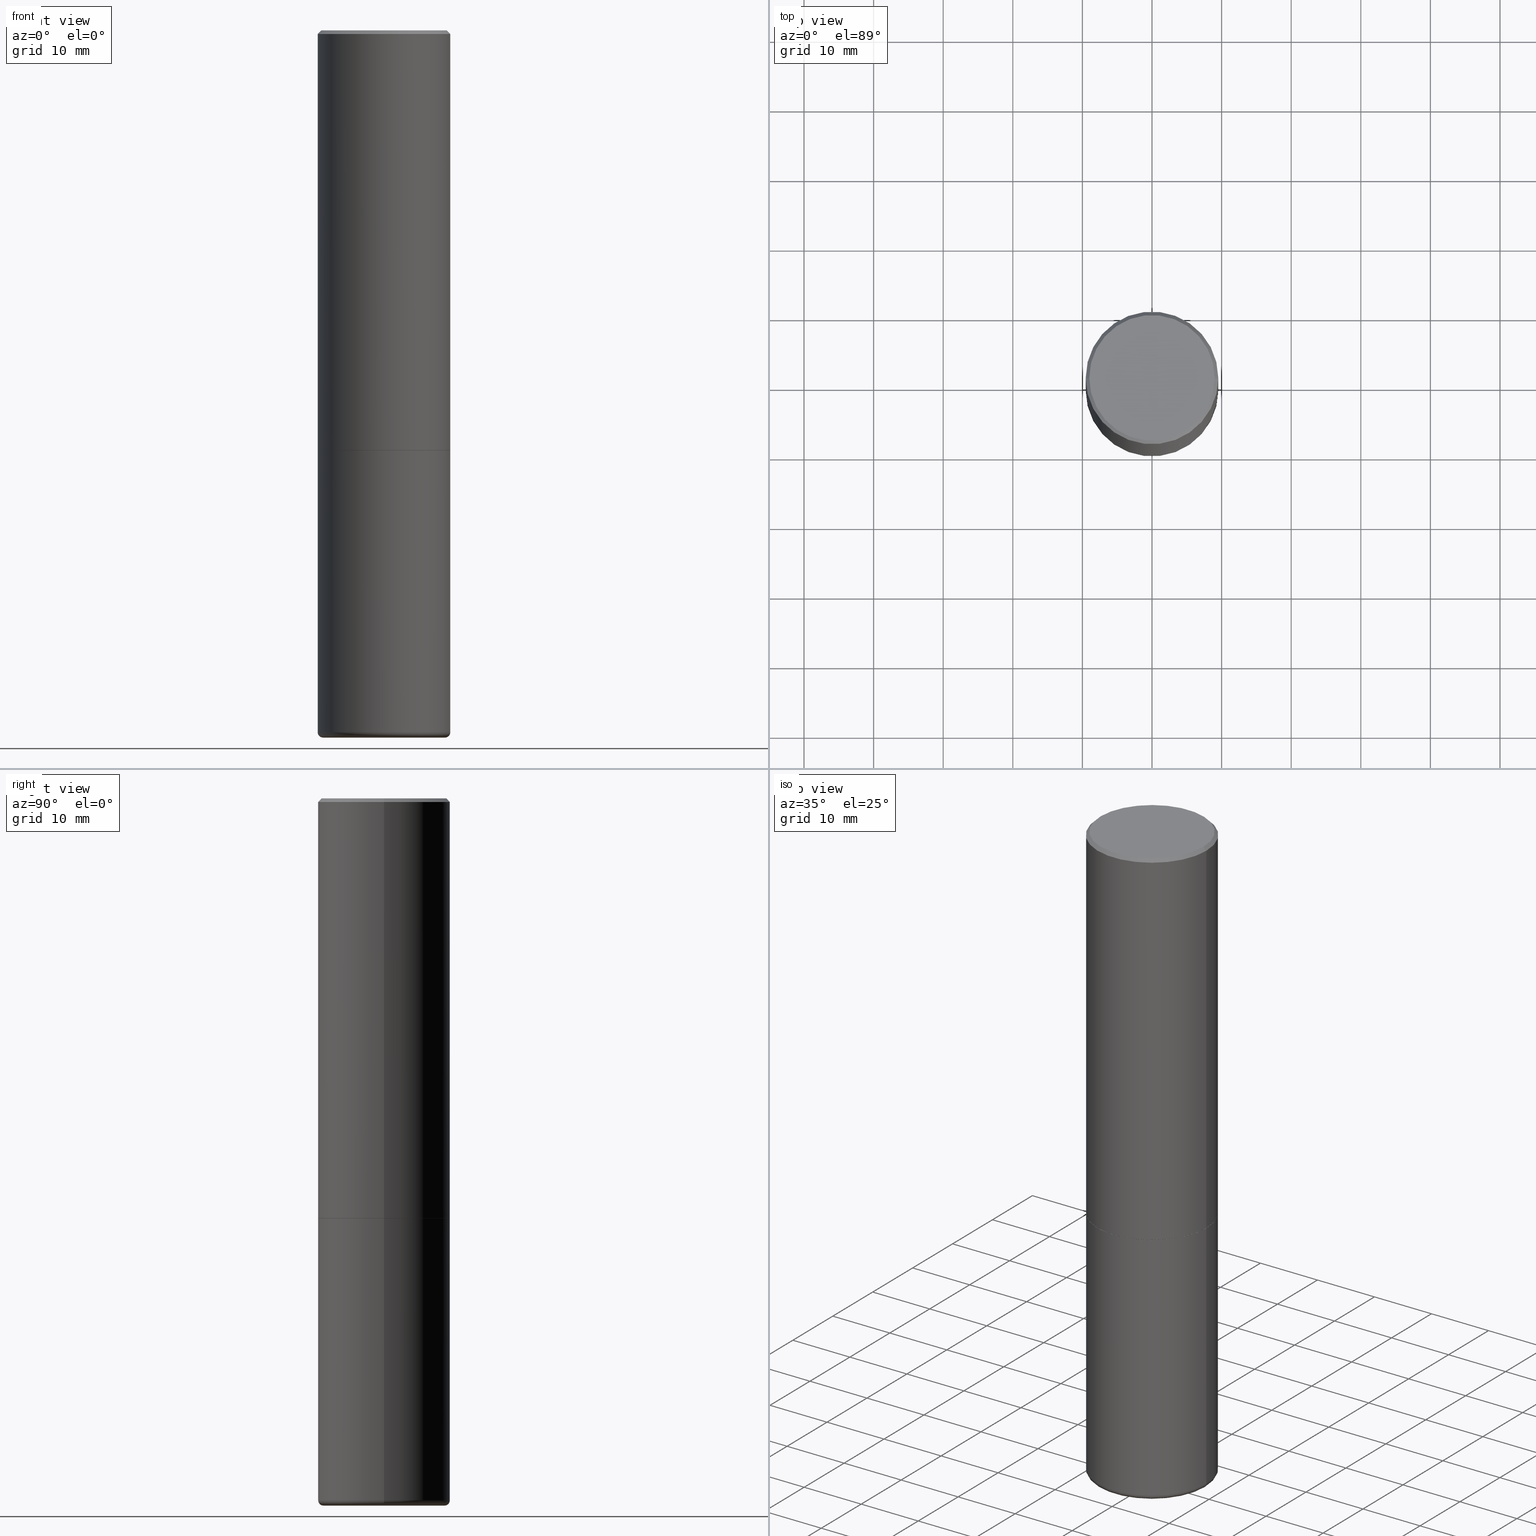
[diagram: canonical four-view strip — front | top / right | iso, engineering-drawing reading convention]
A machine part, canonical four-view strip (front | top / right | iso — engineering-drawing reading convention). The complete STEP part file that produces these views, byte-faithful:
ISO-10303-21;
HEADER;
FILE_DESCRIPTION (( 'STEP AP203' ),
    '1' );
FILE_NAME ('35121.STEP',
    '2022-07-29T12:17:43',
    ( '' ),
    ( '' ),
    'SwSTEP 2.0',
    'SolidWorks 2022',
    '' );
FILE_SCHEMA (( 'CONFIG_CONTROL_DESIGN' ));
ENDSEC;

DATA;
#1 = DATE_AND_TIME ( #261, #391 ) ;
#2 = CARTESIAN_POINT ( 'NONE',  ( 5.805542945883513814E-29, -8.288776698413627111E-15, -2.373999999999999666 ) ) ;
#3 = DIRECTION ( 'NONE',  ( 1.000000000000000000, -6.982962677686265133E-15, 4.883557194083112340E-29 ) ) ;
#4 = PERSON_AND_ORGANIZATION ( #148, #7 ) ;
#5 = EDGE_CURVE ( 'NONE', #259, #17, #77, .T. ) ;
#6 = FACE_OUTER_BOUND ( 'NONE', #88, .T. ) ;
#7 = ORGANIZATION ( 'UNSPECIFIED', 'UNSPECIFIED', '' ) ;
#8 = CARTESIAN_POINT ( 'NONE',  ( 5.807988414689699417E-29, -8.292268179752470118E-15, -2.375000000000000000 ) ) ;
#9 = ORIENTED_EDGE ( 'NONE', *, *, #152, .T. ) ;
#10 = VECTOR ( 'NONE', #208, 39.37007874015748143 ) ;
#11 = CARTESIAN_POINT ( 'NONE',  ( -0.3749999999999992784, 2.548781377355481985E-15, -0.02000000000000016695 ) ) ;
#12 = APPROVAL ( #454, 'UNSPECIFIED' ) ;
#13 = DIRECTION ( 'NONE',  ( 2.438088387897960049E-29, -3.491481338843145188E-15, -1.000000000000000000 ) ) ;
#14 = EDGE_CURVE ( 'NONE', #369, #490, #418, .T. ) ;
#15 = CARTESIAN_POINT ( 'NONE',  ( -0.3549999999999992051, 2.513866563967050730E-15, 4.268512490082953109E-18 ) ) ;
#16 = CONICAL_SURFACE ( 'NONE', #430, 0.3447382039350491145, 1.562069680534942995 ) ;
#17 = VERTEX_POINT ( 'NONE', #230 ) ;
#18 = CARTESIAN_POINT ( 'NONE',  ( 0.000000000000000000, 0.000000000000000000, 0.000000000000000000 ) ) ;
#19 = DIRECTION ( 'NONE',  ( -2.445468806185136597E-29, 3.491481338843145583E-15, 1.000000000000000000 ) ) ;
#20 = ORIENTED_EDGE ( 'NONE', *, *, #14, .F. ) ;
#21 = DIRECTION ( 'NONE',  ( 1.000000000000000000, -6.982962677686266711E-15, 4.876176775795936353E-29 ) ) ;
#22 = CARTESIAN_POINT ( 'NONE',  ( 0.3447382039350491145, -1.637321936702362776E-14, -3.999999999999999556 ) ) ;
#23 = ORIENTED_EDGE ( 'NONE', *, *, #82, .T. ) ;
#24 = AXIS2_PLACEMENT_3D ( 'NONE', #159, #347, #198 ) ;
#25 = DIRECTION ( 'NONE',  ( -2.445468806185136597E-29, 3.491481338843145583E-15, 1.000000000000000000 ) ) ;
#26 = ORIENTED_EDGE ( 'NONE', *, *, #282, .T. ) ;
#27 = DATE_TIME_ROLE ( 'creation_date' ) ;
#28 = EDGE_LOOP ( 'NONE', ( #451, #330, #387, #238 ) ) ;
#29 = APPROVAL_PERSON_ORGANIZATION ( #299, #12, #305 ) ;
#30 = CALENDAR_DATE ( 2022, 29, 7 ) ;
#31 = CARTESIAN_POINT ( 'NONE',  ( 0.3207382039350491487, -1.616561788857291016E-14, -3.999790555173021733 ) ) ;
#32 = EDGE_CURVE ( 'NONE', #478, #295, #380, .T. ) ;
#33 = APPROVAL ( #466, 'UNSPECIFIED' ) ;
#34 = CARTESIAN_POINT ( 'NONE',  ( 0.3749999999999993894, -2.618611004132345678E-15, 1.828566290923473120E-29 ) ) ;
#35 = PLANE ( 'NONE',  #268 ) ;
#36 = DIRECTION ( 'NONE',  ( -2.445468806185136597E-29, 3.491481338843145583E-15, 1.000000000000000000 ) ) ;
#37 = CC_DESIGN_APPROVAL ( #12, ( #476 ) ) ;
#38 = CC_DESIGN_PERSON_AND_ORGANIZATION_ASSIGNMENT ( #67, #297, ( #98 ) ) ;
#39 = PERSON_AND_ORGANIZATION ( #148, #7 ) ;
#40 = APPROVAL_DATE_TIME ( #279, #383 ) ;
#41 = CIRCLE ( 'NONE', #472, 0.02999999999999940561 ) ;
#42 = CARTESIAN_POINT ( 'NONE',  ( -0.3749999999999992784, -8.412191282553172474E-15, -3.970001142308074993 ) ) ;
#43 = APPROVAL_ROLE ( '' ) ;
#44 = ORIENTED_EDGE ( 'NONE', *, *, #180, .T. ) ;
#45 = DIRECTION ( 'NONE',  ( 2.438088387897960049E-29, -3.491481338843145188E-15, -1.000000000000000000 ) ) ;
#46 = ADVANCED_FACE ( 'NONE', ( #339 ), #201, .F. ) ;
#47 = CC_DESIGN_PERSON_AND_ORGANIZATION_ASSIGNMENT ( #146, #225, ( #476 ) ) ;
#48 = VERTEX_POINT ( 'NONE', #262 ) ;
#49 = AXIS2_PLACEMENT_3D ( 'NONE', #51, #355, #120 ) ;
#50 = VECTOR ( 'NONE', #106, 39.37007874015748854 ) ;
#51 = CARTESIAN_POINT ( 'NONE',  ( 5.805542945883513814E-29, -8.288776698413627111E-15, -2.373999999999999666 ) ) ;
#52 = EDGE_CURVE ( 'NONE', #478, #223, #317, .T. ) ;
#53 = DIRECTION ( 'NONE',  ( 1.000000000000000000, -6.982962677686264344E-15, 0.000000000000000000 ) ) ;
#54 = ADVANCED_FACE ( 'NONE', ( #228 ), #131, .T. ) ;
#55 = APPROVAL_PERSON_ORGANIZATION ( #4, #33, #274 ) ;
#56 = CARTESIAN_POINT ( 'NONE',  ( -0.3749999999999993894, 2.664535259100371358E-15, -1.844600658845586515E-29 ) ) ;
#57 = EDGE_LOOP ( 'NONE', ( #99, #375 ) ) ;
#58 = CARTESIAN_POINT ( 'NONE',  ( 0.3739999999999996105, -1.090389622120713096E-14, -2.375000000000000000 ) ) ;
#59 = CARTESIAN_POINT ( 'NONE',  ( 0.000000000000000000, 0.000000000000000000, 0.000000000000000000 ) ) ;
#60 = ORIENTED_EDGE ( 'NONE', *, *, #180, .F. ) ;
#61 = FACE_OUTER_BOUND ( 'NONE', #253, .T. ) ;
#62 = CARTESIAN_POINT ( 'NONE',  ( 0.3207382039350491487, -1.616561788857291016E-14, -3.999790555173021733 ) ) ;
#63 = CARTESIAN_POINT ( 'NONE',  ( 9.708513954033757613E-29, -1.386118490355461518E-14, -3.970001142308074993 ) ) ;
#64 = ORIENTED_EDGE ( 'NONE', *, *, #275, .F. ) ;
#65 = CARTESIAN_POINT ( 'NONE',  ( 0.000000000000000000, 0.000000000000000000, 0.000000000000000000 ) ) ;
#66 = EDGE_LOOP ( 'NONE', ( #392, #410 ) ) ;
#67 = PERSON_AND_ORGANIZATION ( #148, #7 ) ;
#68 = EDGE_LOOP ( 'NONE', ( #457, #434, #128, #281 ) ) ;
#69 = DIRECTION ( 'NONE',  ( 1.000000000000000000, -6.982962677686267499E-15, 0.000000000000000000 ) ) ;
#70 = CARTESIAN_POINT ( 'NONE',  ( 9.708513954033757613E-29, -1.386118490355461518E-14, -3.970001142308074993 ) ) ;
#71 = EDGE_CURVE ( 'NONE', #223, #478, #481, .T. ) ;
#72 = AXIS2_PLACEMENT_3D ( 'NONE', #423, #36, #3 ) ;
#73 = FACE_OUTER_BOUND ( 'NONE', #403, .T. ) ;
#74 = CARTESIAN_POINT ( 'NONE',  ( 0.3447382039350491145, -1.633100111322433910E-14, -3.999999999999999556 ) ) ;
#75 = EDGE_CURVE ( 'NONE', #449, #369, #459, .T. ) ;
#76 = CC_DESIGN_PERSON_AND_ORGANIZATION_ASSIGNMENT ( #39, #432, ( #184 ) ) ;
#77 = CIRCLE ( 'NONE', #342, 0.3749999999999996114 ) ;
#78 = CONICAL_SURFACE ( 'NONE', #150, 0.3749999999999992784, 0.7853981633974456145 ) ;
#79 = LINE ( 'NONE', #433, #165 ) ;
#80 = DIRECTION ( 'NONE',  ( -2.445468806185136877E-29, 3.491481338843145188E-15, 1.000000000000000000 ) ) ;
#81 = DATE_TIME_ROLE ( 'classification_date' ) ;
#82 = EDGE_CURVE ( 'NONE', #166, #440, #443, .T. ) ;
#83 = CARTESIAN_POINT ( 'NONE',  ( -0.3749999999999992784, 2.548781377355481985E-15, -0.02000000000000016695 ) ) ;
#84 = DIRECTION ( 'NONE',  ( 1.000000000000000000, -6.982962677686267499E-15, 0.000000000000000000 ) ) ;
#85 = CIRCLE ( 'NONE', #24, 0.3207382039350491487 ) ;
#86 = DIRECTION ( 'NONE',  ( 1.000000000000000000, -6.982962677686267499E-15, 0.000000000000000000 ) ) ;
#87 = ADVANCED_FACE ( 'NONE', ( #168 ), #35, .F. ) ;
#88 = EDGE_LOOP ( 'NONE', ( #161, #26, #60, #116 ) ) ;
#89 = DIRECTION ( 'NONE',  ( 1.000000000000000000, -6.982962677686266711E-15, 4.876231632511998833E-29 ) ) ;
#90 = EDGE_LOOP ( 'NONE', ( #325, #358, #44, #249 ) ) ;
#91 = CARTESIAN_POINT ( 'NONE',  ( 4.890937612370313446E-31, -6.982962677686349541E-17, -0.02000000000000016695 ) ) ;
#92 = ORIENTED_EDGE ( 'NONE', *, *, #5, .F. ) ;
#93 = CARTESIAN_POINT ( 'NONE',  ( -0.3749999999999995559, -1.514767903494871085E-15, -2.373999999999999666 ) ) ;
#94 = CARTESIAN_POINT ( 'NONE',  ( -0.3207382039350491487, -1.172549117528109573E-14, -3.999790555173021733 ) ) ;
#95 = CARTESIAN_POINT ( 'NONE',  ( 0.3749999999999992784, -1.647979590768695889E-14, -3.970001142308074993 ) ) ;
#96 = ORIENTED_EDGE ( 'NONE', *, *, #82, .F. ) ;
#97 = LINE ( 'NONE', #209, #447 ) ;
#98 = PRODUCT ( '35121', '35121', '', ( #485 ) ) ;
#99 = ORIENTED_EDGE ( 'NONE', *, *, #265, .T. ) ;
#100 = DIRECTION ( 'NONE',  ( -0.7071067811865232589, 7.493145998870265808E-15, 0.7071067811865715536 ) ) ;
#101 = COORDINATED_UNIVERSAL_TIME_OFFSET ( 5, 0, .BEHIND. ) ;
#102 = ORIENTED_EDGE ( 'NONE', *, *, #492, .F. ) ;
#103 = TOROIDAL_SURFACE ( 'NONE', #72, 0.3450000000000001954, 0.02999999999999943337 ) ;
#104 = EDGE_CURVE ( 'NONE', #153, #440, #79, .T. ) ;
#105 = CARTESIAN_POINT ( 'NONE',  ( 9.781875224740545266E-29, -1.396592535537258075E-14, -3.999999999999999556 ) ) ;
#106 = DIRECTION ( 'NONE',  ( 0.9999619230641714207, -6.890705306874780363E-15, -0.008726535498355912635 ) ) ;
#107 = DIRECTION ( 'NONE',  ( 1.000000000000000000, -6.982962677686267499E-15, 0.000000000000000000 ) ) ;
#108 = CIRCLE ( 'NONE', #303, 0.3549999999999992051 ) ;
#109 = AXIS2_PLACEMENT_3D ( 'NONE', #70, #145, #186 ) ;
#110 = CALENDAR_DATE ( 2022, 29, 7 ) ;
#111 = ORIENTED_EDGE ( 'NONE', *, *, #75, .F. ) ;
#112 = DIRECTION ( 'NONE',  ( 2.445468806185136597E-29, -3.491481338843145583E-15, -1.000000000000000000 ) ) ;
#113 = ADVANCED_FACE ( 'NONE', ( #467 ), #321, .F. ) ;
#114 = CC_DESIGN_PERSON_AND_ORGANIZATION_ASSIGNMENT ( #381, #191, ( #276 ) ) ;
#115 = CYLINDRICAL_SURFACE ( 'NONE', #422, 0.3749999999999993894 ) ;
#116 = ORIENTED_EDGE ( 'NONE', *, *, #304, .F. ) ;
#117 = DIRECTION ( 'NONE',  ( 1.000000000000000000, -6.982962677686266711E-15, 4.876176775795936353E-29 ) ) ;
#118 = LOCAL_TIME ( 8, 17, 43.00000000000000000, #346 ) ;
#119 = ADVANCED_FACE ( 'NONE', ( #203 ), #16, .F. ) ;
#120 = DIRECTION ( 'NONE',  ( 1.000000000000000000, -6.982962677686264344E-15, 0.000000000000000000 ) ) ;
#121 = CIRCLE ( 'NONE', #394, 0.3749999999999996114 ) ;
#122 = APPLICATION_CONTEXT ( 'configuration controlled 3d designs of mechanical parts and assemblies' ) ;
#123 = CARTESIAN_POINT ( 'NONE',  ( 9.781875224740545266E-29, -1.396592535537258075E-14, -3.999999999999999556 ) ) ;
#124 = DIRECTION ( 'NONE',  ( -1.000000000000000000, 6.982962677686265922E-15, -4.876176775795935793E-29 ) ) ;
#125 = ORIENTED_EDGE ( 'NONE', *, *, #152, .F. ) ;
#126 = CARTESIAN_POINT ( 'NONE',  ( -1.043851414335219820E-46, 1.490343170380447200E-32, 4.268512490100411279E-18 ) ) ;
#127 = CARTESIAN_POINT ( 'NONE',  ( 0.000000000000000000, 0.000000000000000000, 0.000000000000000000 ) ) ;
#128 = ORIENTED_EDGE ( 'NONE', *, *, #492, .T. ) ;
#129 = CONICAL_SURFACE ( 'NONE', #206, 0.3739999999999996105, 0.7853981633974141952 ) ;
#130 = DIRECTION ( 'NONE',  ( -2.438088387897960049E-29, 3.491481338843145188E-15, 1.000000000000000000 ) ) ;
#131 = CONICAL_SURFACE ( 'NONE', #465, 0.3749999999999992784, 0.7853981633974456145 ) ;
#132 = FACE_OUTER_BOUND ( 'NONE', #68, .T. ) ;
#133 = EDGE_CURVE ( 'NONE', #295, #48, #200, .T. ) ;
#134 = EDGE_LOOP ( 'NONE', ( #302, #400, #414 ) ) ;
#135 = CIRCLE ( 'NONE', #242, 0.3739999999999996105 ) ;
#136 = ORIENTED_EDGE ( 'NONE', *, *, #388, .F. ) ;
#137 = DIRECTION ( 'NONE',  ( 0.000000000000000000, 0.000000000000000000, 1.000000000000000000 ) ) ;
#138 = ORIENTED_EDGE ( 'NONE', *, *, #388, .T. ) ;
#139 = CONICAL_SURFACE ( 'NONE', #199, 0.3207382039350491487, 1.535889741755010807 ) ;
#140 = ADVANCED_FACE ( 'NONE', ( #6 ), #115, .T. ) ;
#141 = LENGTH_MEASURE_WITH_UNIT ( LENGTH_MEASURE( 0.02539999999999999897 ), #255 );
#142 = DIRECTION ( 'NONE',  ( 1.000000000000000000, -6.982962677686264344E-15, 0.000000000000000000 ) ) ;
#143 = UNCERTAINTY_MEASURE_WITH_UNIT (LENGTH_MEASURE( 1.000000000000000082E-05 ), #222, 'distance_accuracy_value', 'NONE');
#144 = VECTOR ( 'NONE', #254, 39.37007874015748854 ) ;
#145 = DIRECTION ( 'NONE',  ( -2.445468806185136597E-29, 3.491481338843145583E-15, 1.000000000000000000 ) ) ;
#146 = PERSON_AND_ORGANIZATION ( #148, #7 ) ;
#147 = DIRECTION ( 'NONE',  ( 2.445468806185136597E-29, -3.491481338843145583E-15, -1.000000000000000000 ) ) ;
#148 = PERSON ( 'UNSPECIFIED', 'UNSPECIFIED', 'UNSPECIFIED', ('UNSPECIFIED'), ('UNSPECIFIED'), ('UNSPECIFIED') ) ;
#149 = COORDINATED_UNIVERSAL_TIME_OFFSET ( 5, 0, .BEHIND. ) ;
#150 = AXIS2_PLACEMENT_3D ( 'NONE', #91, #359, #329 ) ;
#151 = FACE_OUTER_BOUND ( 'NONE', #134, .T. ) ;
#152 = EDGE_CURVE ( 'NONE', #455, #216, #135, .T. ) ;
#153 = VERTEX_POINT ( 'NONE', #243 ) ;
#154 = AXIS2_PLACEMENT_3D ( 'NONE', #378, #460, #491 ) ;
#155 = DIRECTION ( 'NONE',  ( 0.7071067811865454633, -7.319954787623246579E-15, -0.7071067811865493491 ) ) ;
#156 = AXIS2_PLACEMENT_3D ( 'NONE', #214, #370, #170 ) ;
#157 = ORIENTED_EDGE ( 'NONE', *, *, #282, .F. ) ;
#158 = DIRECTION ( 'NONE',  ( -0.7071067811865454633, 2.468850131082235761E-15, -0.7071067811865493491 ) ) ;
#159 = CARTESIAN_POINT ( 'NONE',  ( 9.781363033949554228E-29, -1.396519408266767050E-14, -3.999790555173021733 ) ) ;
#160 = DIRECTION ( 'NONE',  ( -1.000000000000000000, 6.982962677686265922E-15, -4.876176775795935793E-29 ) ) ;
#161 = ORIENTED_EDGE ( 'NONE', *, *, #221, .T. ) ;
#162 = CIRCLE ( 'NONE', #310, 0.3447382039350491145 ) ;
#163 = LINE ( 'NONE', #475, #177 ) ;
#164 = LINE ( 'NONE', #337, #224 ) ;
#165 = VECTOR ( 'NONE', #155, 39.37007874015748854 ) ;
#166 = VERTEX_POINT ( 'NONE', #83 ) ;
#167 = DIRECTION ( 'NONE',  ( -2.445468806185136597E-29, 3.491481338843145583E-15, 1.000000000000000000 ) ) ;
#168 = FACE_OUTER_BOUND ( 'NONE', #66, .T. ) ;
#169 = EDGE_CURVE ( 'NONE', #474, #223, #41, .T. ) ;
#170 = DIRECTION ( 'NONE',  ( 1.000000000000000000, -6.982962677686267499E-15, 0.000000000000000000 ) ) ;
#171 = ORIENTED_EDGE ( 'NONE', *, *, #340, .T. ) ;
#172 = LOCAL_TIME ( 8, 17, 43.00000000000000000, #374 ) ;
#173 = PLANE ( 'NONE',  #211 ) ;
#174 = APPLICATION_PROTOCOL_DEFINITION ( 'international standard', 'config_control_design', 1994, #189 ) ;
#175 = ORIENTED_EDGE ( 'NONE', *, *, #52, .F. ) ;
#176 = MANIFOLD_SOLID_BREP ( 'Body-Move/Copy2[1]', #273 ) ;
#177 = VECTOR ( 'NONE', #401, 39.37007874015748143 ) ;
#178 = DIRECTION ( 'NONE',  ( -0.9993908270190957621, 6.856857904024558837E-15, -0.03489949670250019204 ) ) ;
#179 = EDGE_LOOP ( 'NONE', ( #111, #444, #251 ) ) ;
#180 = EDGE_CURVE ( 'NONE', #440, #166, #484, .T. ) ;
#181 = PRODUCT_DEFINITION_SHAPE ( 'NONE', 'NONE',  #476 ) ;
#182 =( NAMED_UNIT ( * ) SI_UNIT ( $, .STERADIAN. ) SOLID_ANGLE_UNIT ( ) );
#183 = ORIENTED_EDGE ( 'NONE', *, *, #326, .T. ) ;
#184 = PRODUCT_DEFINITION_FORMATION_WITH_SPECIFIED_SOURCE ( 'ANY', '', #98, .NOT_KNOWN. ) ;
#185 = DIRECTION ( 'NONE',  ( 2.445468806185136597E-29, -3.491481338843145583E-15, -1.000000000000000000 ) ) ;
#186 = DIRECTION ( 'NONE',  ( 1.000000000000000000, -6.982962677686266711E-15, 0.000000000000000000 ) ) ;
#187 = DATE_AND_TIME ( #269, #409 ) ;
#188 = CC_DESIGN_SECURITY_CLASSIFICATION ( #276, ( #184 ) ) ;
#189 = APPLICATION_CONTEXT ( 'configuration controlled 3d designs of mechanical parts and assemblies' ) ;
#190 = ADVANCED_BREP_SHAPE_REPRESENTATION ( '35121', ( #176, #351, #489 ), #357 ) ;
#191 = PERSON_AND_ORGANIZATION_ROLE ( 'classification_officer' ) ;
#192 = AXIS2_PLACEMENT_3D ( 'NONE', #59, #19, #288 ) ;
#193 = CARTESIAN_POINT ( 'NONE',  ( 0.3749999999999992784, -2.642516375941182506E-15, -0.02000000000000016695 ) ) ;
#194 = SECURITY_CLASSIFICATION_LEVEL ( 'unclassified' ) ;
#195 = ADVANCED_FACE ( 'NONE', ( #435 ), #384, .T. ) ;
#196 = DIRECTION ( 'NONE',  ( -2.445468806185136597E-29, 3.491481338843145583E-15, 1.000000000000000000 ) ) ;
#197 = DIRECTION ( 'NONE',  ( -1.000000000000000000, 6.982962677686270655E-15, 0.000000000000000000 ) ) ;
#198 = DIRECTION ( 'NONE',  ( 1.000000000000000000, -6.982962677686264344E-15, 0.000000000000000000 ) ) ;
#199 = AXIS2_PLACEMENT_3D ( 'NONE', #312, #112, #426 ) ;
#200 = CIRCLE ( 'NONE', #236, 0.3749999999999996114 ) ;
#201 = CONICAL_SURFACE ( 'NONE', #336, 0.3447382039350491145, 1.562069680534942995 ) ;
#202 = EDGE_LOOP ( 'NONE', ( #468, #408, #333, #23 ) ) ;
#203 = FACE_OUTER_BOUND ( 'NONE', #482, .T. ) ;
#204 = ORIENTED_EDGE ( 'NONE', *, *, #350, .F. ) ;
#205 = DIRECTION ( 'NONE',  ( 1.000000000000000000, -6.982962677686270655E-15, 0.000000000000000000 ) ) ;
#206 = AXIS2_PLACEMENT_3D ( 'NONE', #412, #368, #69 ) ;
#207 = ORIENTED_EDGE ( 'NONE', *, *, #32, .T. ) ;
#208 = DIRECTION ( 'NONE',  ( -2.445468806185136877E-29, 3.491481338843145188E-15, 1.000000000000000000 ) ) ;
#209 = CARTESIAN_POINT ( 'NONE',  ( -0.3207382039350491487, -1.172549117528109573E-14, -3.999790555173021733 ) ) ;
#210 = EDGE_LOOP ( 'NONE', ( #183, #322, #175, #102 ) ) ;
#211 = AXIS2_PLACEMENT_3D ( 'NONE', #445, #130, #217 ) ;
#212 = EDGE_CURVE ( 'NONE', #300, #166, #396, .T. ) ;
#213 = DIRECTION ( 'NONE',  ( -2.445468806185136597E-29, 3.491481338843145583E-15, 1.000000000000000000 ) ) ;
#214 = CARTESIAN_POINT ( 'NONE',  ( 5.807988414689699417E-29, -8.292268179752470118E-15, -2.375000000000000000 ) ) ;
#215 = PRODUCT_RELATED_PRODUCT_CATEGORY ( 'detail', '', ( #98 ) ) ;
#216 = VERTEX_POINT ( 'NONE', #320 ) ;
#217 = DIRECTION ( 'NONE',  ( 1.000000000000000000, -6.982962677686265922E-15, 4.876176775795935793E-29 ) ) ;
#218 = CYLINDRICAL_SURFACE ( 'NONE', #192, 0.3749999999999993894 ) ;
#219 = EDGE_LOOP ( 'NONE', ( #136, #486, #438, #92 ) ) ;
#220 = CARTESIAN_POINT ( 'NONE',  ( 9.781875224740545266E-29, -1.396592535537258075E-14, -3.999999999999999556 ) ) ;
#221 = EDGE_CURVE ( 'NONE', #17, #259, #328, .T. ) ;
#222 =( CONVERSION_BASED_UNIT ( 'INCH', #141 ) LENGTH_UNIT ( ) NAMED_UNIT ( #389 ) );
#223 = VERTEX_POINT ( 'NONE', #42 ) ;
#224 = VECTOR ( 'NONE', #100, 39.37007874015748854 ) ;
#225 = PERSON_AND_ORGANIZATION_ROLE ( 'creator' ) ;
#226 = EDGE_LOOP ( 'NONE', ( #335, #373, #207, #64 ) ) ;
#227 = DIRECTION ( 'NONE',  ( -2.445468806185136597E-29, 3.491481338843145583E-15, 1.000000000000000000 ) ) ;
#228 = FACE_OUTER_BOUND ( 'NONE', #90, .T. ) ;
#229 = DIRECTION ( 'NONE',  ( -6.982962677686266711E-15, -1.000000000000000000, 3.491481338843145583E-15 ) ) ;
#230 = CARTESIAN_POINT ( 'NONE',  ( 0.3749999999999996114, -1.090738770254597397E-14, -2.373999999999999666 ) ) ;
#231 = EDGE_CURVE ( 'NONE', #455, #17, #284, .T. ) ;
#232 = CIRCLE ( 'NONE', #294, 0.3447382039350491145 ) ;
#233 = PERSON_AND_ORGANIZATION ( #148, #7 ) ;
#234 = ADVANCED_FACE ( 'NONE', ( #364 ), #173, .F. ) ;
#235 = DIRECTION ( 'NONE',  ( 7.105427357601001859E-15, 1.000000000000000000, -3.491481338843145583E-15 ) ) ;
#236 = AXIS2_PLACEMENT_3D ( 'NONE', #348, #323, #53 ) ;
#237 = PERSON_AND_ORGANIZATION_ROLE ( 'design_supplier' ) ;
#238 = ORIENTED_EDGE ( 'NONE', *, *, #340, .F. ) ;
#239 = CARTESIAN_POINT ( 'NONE',  ( 9.781363033949554228E-29, -1.396519408266767050E-14, -3.999790555173021733 ) ) ;
#240 = CARTESIAN_POINT ( 'NONE',  ( -0.3450000000000001954, -1.140981246518226815E-14, -3.970001142308074993 ) ) ;
#241 = DIRECTION ( 'NONE',  ( 2.445468806185136597E-29, -3.491481338843145583E-15, -1.000000000000000000 ) ) ;
#242 = AXIS2_PLACEMENT_3D ( 'NONE', #8, #280, #86 ) ;
#243 = CARTESIAN_POINT ( 'NONE',  ( 0.3549999999999992051, -2.538996582575035526E-15, 4.268512490117958041E-18 ) ) ;
#244 = ORIENTED_EDGE ( 'NONE', *, *, #487, .T. ) ;
#245 = DIRECTION ( 'NONE',  ( -2.445468806185136597E-29, 3.491481338843145583E-15, 1.000000000000000000 ) ) ;
#246 = DIRECTION ( 'NONE',  ( -2.445468806185136597E-29, 3.491481338843145583E-15, 1.000000000000000000 ) ) ;
#247 = APPROVAL_PERSON_ORGANIZATION ( #233, #383, #43 ) ;
#248 = ADVANCED_FACE ( 'NONE', ( #61 ), #252, .T. ) ;
#249 = ORIENTED_EDGE ( 'NONE', *, *, #212, .F. ) ;
#250 = CARTESIAN_POINT ( 'NONE',  ( 5.807988414689699417E-29, -8.292268179752470118E-15, -2.375000000000000000 ) ) ;
#251 = ORIENTED_EDGE ( 'NONE', *, *, #487, .F. ) ;
#252 = CYLINDRICAL_SURFACE ( 'NONE', #285, 0.3749999999999993894 ) ;
#253 = EDGE_LOOP ( 'NONE', ( #157, #366, #256, #96 ) ) ;
#254 = DIRECTION ( 'NONE',  ( -0.9999619230641714207, 6.952228252019233144E-15, -0.008726535498355912635 ) ) ;
#255 =( LENGTH_UNIT ( ) NAMED_UNIT ( * ) SI_UNIT ( $, .METRE. ) );
#256 = ORIENTED_EDGE ( 'NONE', *, *, #304, .T. ) ;
#257 = CARTESIAN_POINT ( 'NONE',  ( 2.478951750578619081E-15, 0.3549999999999992051, -1.237341619044263666E-15 ) ) ;
#258 = CARTESIAN_POINT ( 'NONE',  ( 0.3450000000000001954, -1.627030702735637846E-14, -3.970001142308074993 ) ) ;
#259 = VERTEX_POINT ( 'NONE', #93 ) ;
#260 = VECTOR ( 'NONE', #158, 39.37007874015748854 ) ;
#261 = CALENDAR_DATE ( 2022, 29, 7 ) ;
#262 = CARTESIAN_POINT ( 'NONE',  ( -0.3749999999999995559, -8.412191282553170896E-15, -2.375000000000000000 ) ) ;
#263 = CARTESIAN_POINT ( 'NONE',  ( 9.753972744272833171E-29, -1.392608800818824940E-14, -3.988590130286208790 ) ) ;
#264 = DIRECTION ( 'NONE',  ( -2.445468806185136597E-29, 3.491481338843145583E-15, 1.000000000000000000 ) ) ;
#265 = EDGE_CURVE ( 'NONE', #300, #153, #108, .T. ) ;
#266 = AXIS2_PLACEMENT_3D ( 'NONE', #63, #227, #417 ) ;
#267 = CC_DESIGN_PERSON_AND_ORGANIZATION_ASSIGNMENT ( #345, #237, ( #184 ) ) ;
#268 = AXIS2_PLACEMENT_3D ( 'NONE', #316, #45, #160 ) ;
#269 = CALENDAR_DATE ( 2022, 29, 7 ) ;
#270 = CARTESIAN_POINT ( 'NONE',  ( 4.890937612370313446E-31, -6.982962677686349541E-17, -0.02000000000000016695 ) ) ;
#271 = DESIGN_CONTEXT ( 'detailed design', #122, 'design' ) ;
#272 = AXIS2_PLACEMENT_3D ( 'NONE', #464, #196, #84 ) ;
#273 = CLOSED_SHELL ( 'NONE', ( #46, #463, #395, #429, #113, #87, #411, #428, #119 ) ) ;
#274 = APPROVAL_ROLE ( '' ) ;
#275 = EDGE_CURVE ( 'NONE', #48, #295, #121, .T. ) ;
#276 = SECURITY_CLASSIFICATION ( '', '', #194 ) ;
#277 = EDGE_LOOP ( 'NONE', ( #338, #292, #298, #319 ) ) ;
#278 = LINE ( 'NONE', #431, #480 ) ;
#279 = DATE_AND_TIME ( #382, #398 ) ;
#280 = DIRECTION ( 'NONE',  ( -2.445468806185136597E-29, 3.491481338843145583E-15, 1.000000000000000000 ) ) ;
#281 = ORIENTED_EDGE ( 'NONE', *, *, #71, .F. ) ;
#282 = EDGE_CURVE ( 'NONE', #259, #166, #397, .T. ) ;
#283 = VECTOR ( 'NONE', #341, 39.37007874015748143 ) ;
#284 = LINE ( 'NONE', #58, #334 ) ;
#285 = AXIS2_PLACEMENT_3D ( 'NONE', #18, #245, #21 ) ;
#286 = CARTESIAN_POINT ( 'NONE',  ( 0.000000000000000000, 0.000000000000000000, 0.000000000000000000 ) ) ;
#287 = ADVANCED_FACE ( 'NONE', ( #290 ), #78, .T. ) ;
#288 = DIRECTION ( 'NONE',  ( 1.000000000000000000, -6.982962677686266711E-15, 4.876176775795936353E-29 ) ) ;
#289 = ORIENTED_EDGE ( 'NONE', *, *, #221, .F. ) ;
#290 = FACE_OUTER_BOUND ( 'NONE', #202, .T. ) ;
#291 = DIRECTION ( 'NONE',  ( -2.445468806185136597E-29, 3.491481338843145583E-15, 1.000000000000000000 ) ) ;
#292 = ORIENTED_EDGE ( 'NONE', *, *, #442, .T. ) ;
#293 = DIRECTION ( 'NONE',  ( 1.000000000000000000, -6.982962677686266711E-15, 4.876231632511998833E-29 ) ) ;
#294 = AXIS2_PLACEMENT_3D ( 'NONE', #439, #246, #399 ) ;
#295 = VERTEX_POINT ( 'NONE', #331 ) ;
#296 = DIRECTION ( 'NONE',  ( -2.445468806185136597E-29, 3.491481338843145583E-15, 1.000000000000000000 ) ) ;
#297 = PERSON_AND_ORGANIZATION_ROLE ( 'design_owner' ) ;
#298 = ORIENTED_EDGE ( 'NONE', *, *, #133, .F. ) ;
#299 = PERSON_AND_ORGANIZATION ( #148, #7 ) ;
#300 = VERTEX_POINT ( 'NONE', #15 ) ;
#301 =( NAMED_UNIT ( * ) PLANE_ANGLE_UNIT ( ) SI_UNIT ( $, .RADIAN. ) );
#302 = ORIENTED_EDGE ( 'NONE', *, *, #376, .F. ) ;
#303 = AXIS2_PLACEMENT_3D ( 'NONE', #126, #405, #89 ) ;
#304 = EDGE_CURVE ( 'NONE', #17, #440, #163, .T. ) ;
#305 = APPROVAL_ROLE ( '' ) ;
#306 = CARTESIAN_POINT ( 'NONE',  ( 4.890937612370313446E-31, -6.982962677686349541E-17, -0.02000000000000016695 ) ) ;
#307 = DIRECTION ( 'NONE',  ( -1.000000000000000000, 6.982962677686267499E-15, 0.000000000000000000 ) ) ;
#308 = SHAPE_DEFINITION_REPRESENTATION ( #181, #190 ) ;
#309 = EDGE_CURVE ( 'NONE', #153, #300, #462, .T. ) ;
#310 = AXIS2_PLACEMENT_3D ( 'NONE', #220, #296, #205 ) ;
#311 = COORDINATED_UNIVERSAL_TIME_OFFSET ( 5, 0, .BEHIND. ) ;
#312 = CARTESIAN_POINT ( 'NONE',  ( 9.781363033949554228E-29, -1.396519408266767050E-14, -3.999790555173021733 ) ) ;
#313 = CC_DESIGN_APPROVAL ( #33, ( #276 ) ) ;
#314 = APPROVAL_STATUS ( 'not_yet_approved' ) ;
#315 = AXIS2_PLACEMENT_3D ( 'NONE', #239, #327, #436 ) ;
#316 = CARTESIAN_POINT ( 'NONE',  ( 2.618611004132405237E-15, 0.3749999999999913403, -2.375000000000001332 ) ) ;
#317 = CIRCLE ( 'NONE', #109, 0.3749999999999992784 ) ;
#318 = EDGE_CURVE ( 'NONE', #352, #369, #85, .T. ) ;
#319 = ORIENTED_EDGE ( 'NONE', *, *, #32, .F. ) ;
#320 = CARTESIAN_POINT ( 'NONE',  ( -0.3739999999999996105, -5.629539893661476182E-15, -2.375000000000000000 ) ) ;
#321 = CONICAL_SURFACE ( 'NONE', #315, 0.3207382039350491487, 1.535889741755010807 ) ;
#322 = ORIENTED_EDGE ( 'NONE', *, *, #169, .T. ) ;
#323 = DIRECTION ( 'NONE',  ( -2.445468806185136597E-29, 3.491481338843145583E-15, 1.000000000000000000 ) ) ;
#324 = CIRCLE ( 'NONE', #419, 0.3207382039350491487 ) ;
#325 = ORIENTED_EDGE ( 'NONE', *, *, #309, .F. ) ;
#326 = EDGE_CURVE ( 'NONE', #490, #474, #162, .T. ) ;
#327 = DIRECTION ( 'NONE',  ( 2.445468806185136597E-29, -3.491481338843145583E-15, -1.000000000000000000 ) ) ;
#328 = CIRCLE ( 'NONE', #49, 0.3749999999999996114 ) ;
#329 = DIRECTION ( 'NONE',  ( -1.000000000000000000, 6.982962677686267499E-15, 0.000000000000000000 ) ) ;
#330 = ORIENTED_EDGE ( 'NONE', *, *, #14, .T. ) ;
#331 = CARTESIAN_POINT ( 'NONE',  ( 0.3749999999999996114, -1.091087918388481698E-14, -2.375000000000000000 ) ) ;
#332 = AXIS2_PLACEMENT_3D ( 'NONE', #258, #229, #450 ) ;
#333 = ORIENTED_EDGE ( 'NONE', *, *, #212, .T. ) ;
#334 = VECTOR ( 'NONE', #367, 39.37007874015748854 ) ;
#335 = ORIENTED_EDGE ( 'NONE', *, *, #442, .F. ) ;
#336 = AXIS2_PLACEMENT_3D ( 'NONE', #105, #185, #416 ) ;
#337 = CARTESIAN_POINT ( 'NONE',  ( -0.3739999999999996105, -5.634838348009698584E-15, -2.375000000000000000 ) ) ;
#338 = ORIENTED_EDGE ( 'NONE', *, *, #52, .T. ) ;
#339 = FACE_OUTER_BOUND ( 'NONE', #28, .T. ) ;
#340 = EDGE_CURVE ( 'NONE', #352, #474, #483, .T. ) ;
#341 = DIRECTION ( 'NONE',  ( 0.9993908270190957621, -6.978169709227539121E-15, -0.03489949670250019204 ) ) ;
#342 = AXIS2_PLACEMENT_3D ( 'NONE', #2, #264, #142 ) ;
#343 = DIRECTION ( 'NONE',  ( 1.000000000000000000, -6.982962677686264344E-15, 0.000000000000000000 ) ) ;
#344 = DIRECTION ( 'NONE',  ( -2.445468806185136877E-29, 3.491481338843145188E-15, 1.000000000000000000 ) ) ;
#345 = PERSON_AND_ORGANIZATION ( #148, #7 ) ;
#346 = COORDINATED_UNIVERSAL_TIME_OFFSET ( 5, 0, .BEHIND. ) ;
#347 = DIRECTION ( 'NONE',  ( -2.445468806185136597E-29, 3.491481338843145583E-15, 1.000000000000000000 ) ) ;
#348 = CARTESIAN_POINT ( 'NONE',  ( 5.807988414689699417E-29, -8.292268179752470118E-15, -2.375000000000000000 ) ) ;
#349 = DIRECTION ( 'NONE',  ( -2.445468806185136597E-29, 3.491481338843145583E-15, 1.000000000000000000 ) ) ;
#350 = EDGE_CURVE ( 'NONE', #216, #455, #437, .T. ) ;
#351 = MANIFOLD_SOLID_BREP ( 'Body-Move/Copy2[2]', #354 ) ;
#352 = VERTEX_POINT ( 'NONE', #94 ) ;
#353 = AXIS2_PLACEMENT_3D ( 'NONE', #127, #291, #365 ) ;
#354 = CLOSED_SHELL ( 'NONE', ( #452, #140, #54, #287, #248, #195, #234, #356 ) ) ;
#355 = DIRECTION ( 'NONE',  ( -2.445468806185136597E-29, 3.491481338843145583E-15, 1.000000000000000000 ) ) ;
#356 = ADVANCED_FACE ( 'NONE', ( #402 ), #406, .F. ) ;
#357 =( GEOMETRIC_REPRESENTATION_CONTEXT ( 3 ) GLOBAL_UNCERTAINTY_ASSIGNED_CONTEXT ( ( #143 ) ) GLOBAL_UNIT_ASSIGNED_CONTEXT ( ( #222, #301, #182 ) ) REPRESENTATION_CONTEXT ( 'NONE', 'WORKASPACE' ) );
#358 = ORIENTED_EDGE ( 'NONE', *, *, #104, .T. ) ;
#359 = DIRECTION ( 'NONE',  ( 2.445468806185136597E-29, -3.491481338843145583E-15, -1.000000000000000000 ) ) ;
#360 = FACE_OUTER_BOUND ( 'NONE', #226, .T. ) ;
#361 = VECTOR ( 'NONE', #344, 39.37007874015748143 ) ;
#362 = AXIS2_PLACEMENT_3D ( 'NONE', #441, #167, #293 ) ;
#363 = ORIENTED_EDGE ( 'NONE', *, *, #326, .F. ) ;
#364 = FACE_OUTER_BOUND ( 'NONE', #488, .T. ) ;
#365 = DIRECTION ( 'NONE',  ( 1.000000000000000000, -6.982962677686266711E-15, 4.876176775795936353E-29 ) ) ;
#366 = ORIENTED_EDGE ( 'NONE', *, *, #5, .T. ) ;
#367 = DIRECTION ( 'NONE',  ( 0.7071067811865232589, -2.468850131082003836E-15, 0.7071067811865715536 ) ) ;
#368 = DIRECTION ( 'NONE',  ( -2.445468806185136597E-29, 3.491481338843145583E-15, 1.000000000000000000 ) ) ;
#369 = VERTEX_POINT ( 'NONE', #62 ) ;
#370 = DIRECTION ( 'NONE',  ( -2.445468806185136597E-29, 3.491481338843145583E-15, 1.000000000000000000 ) ) ;
#371 = APPLICATION_PROTOCOL_DEFINITION ( 'international standard', 'config_control_design', 1994, #122 ) ;
#372 = AXIS2_PLACEMENT_3D ( 'NONE', #393, #385, #469 ) ;
#373 = ORIENTED_EDGE ( 'NONE', *, *, #71, .T. ) ;
#374 = COORDINATED_UNIVERSAL_TIME_OFFSET ( 5, 0, .BEHIND. ) ;
#375 = ORIENTED_EDGE ( 'NONE', *, *, #309, .T. ) ;
#376 = EDGE_CURVE ( 'NONE', #449, #352, #97, .T. ) ;
#377 = APPROVAL_DATE_TIME ( #1, #12 ) ;
#378 = CARTESIAN_POINT ( 'NONE',  ( 9.708513954033757613E-29, -1.386118490355461518E-14, -3.970001142308074993 ) ) ;
#379 = CARTESIAN_POINT ( 'NONE',  ( 0.3739999999999996105, -1.090389622120713096E-14, -2.375000000000000000 ) ) ;
#380 = LINE ( 'NONE', #34, #361 ) ;
#381 = PERSON_AND_ORGANIZATION ( #148, #7 ) ;
#382 = CALENDAR_DATE ( 2022, 29, 7 ) ;
#383 = APPROVAL ( #314, 'UNSPECIFIED' ) ;
#384 = CONICAL_SURFACE ( 'NONE', #272, 0.3739999999999996105, 0.7853981633974141952 ) ;
#385 = DIRECTION ( 'NONE',  ( -2.445468806185136597E-29, 3.491481338843145583E-15, 1.000000000000000000 ) ) ;
#386 = APPROVAL_DATE_TIME ( #187, #33 ) ;
#387 = ORIENTED_EDGE ( 'NONE', *, *, #404, .F. ) ;
#388 = EDGE_CURVE ( 'NONE', #216, #259, #164, .T. ) ;
#389 = DIMENSIONAL_EXPONENTS ( 1.000000000000000000, 0.000000000000000000, 0.000000000000000000, 0.000000000000000000, 0.000000000000000000, 0.000000000000000000, 0.000000000000000000 ) ;
#390 = DIRECTION ( 'NONE',  ( -1.000000000000000000, 7.105427357601001859E-15, 0.000000000000000000 ) ) ;
#391 = LOCAL_TIME ( 8, 17, 43.00000000000000000, #101 ) ;
#392 = ORIENTED_EDGE ( 'NONE', *, *, #133, .T. ) ;
#393 = CARTESIAN_POINT ( 'NONE',  ( 4.890937612370313446E-31, -6.982962677686349541E-17, -0.02000000000000016695 ) ) ;
#394 = AXIS2_PLACEMENT_3D ( 'NONE', #250, #213, #479 ) ;
#395 = ADVANCED_FACE ( 'NONE', ( #473 ), #218, .T. ) ;
#396 = LINE ( 'NONE', #11, #260 ) ;
#397 = LINE ( 'NONE', #56, #10 ) ;
#398 = LOCAL_TIME ( 8, 17, 43.00000000000000000, #311 ) ;
#399 = DIRECTION ( 'NONE',  ( 1.000000000000000000, -6.982962677686270655E-15, 0.000000000000000000 ) ) ;
#400 = ORIENTED_EDGE ( 'NONE', *, *, #75, .T. ) ;
#401 = DIRECTION ( 'NONE',  ( -2.445468806185136877E-29, 3.491481338843145188E-15, 1.000000000000000000 ) ) ;
#402 = FACE_OUTER_BOUND ( 'NONE', #57, .T. ) ;
#403 = EDGE_LOOP ( 'NONE', ( #9, #138, #289, #471 ) ) ;
#404 = EDGE_CURVE ( 'NONE', #474, #490, #232, .T. ) ;
#405 = DIRECTION ( 'NONE',  ( -2.445468806185136597E-29, 3.491481338843145583E-15, 1.000000000000000000 ) ) ;
#406 = PLANE ( 'NONE',  #413 ) ;
#407 = FACE_OUTER_BOUND ( 'NONE', #210, .T. ) ;
#408 = ORIENTED_EDGE ( 'NONE', *, *, #265, .F. ) ;
#409 = LOCAL_TIME ( 8, 17, 43.00000000000000000, #149 ) ;
#410 = ORIENTED_EDGE ( 'NONE', *, *, #275, .T. ) ;
#411 = ADVANCED_FACE ( 'NONE', ( #360 ), #477, .T. ) ;
#412 = CARTESIAN_POINT ( 'NONE',  ( 5.807988414689699417E-29, -8.292268179752470118E-15, -2.375000000000000000 ) ) ;
#413 = AXIS2_PLACEMENT_3D ( 'NONE', #257, #13, #124 ) ;
#414 = ORIENTED_EDGE ( 'NONE', *, *, #318, .F. ) ;
#415 = DIRECTION ( 'NONE',  ( 1.000000000000000000, 0.000000000000000000, 0.000000000000000000 ) ) ;
#416 = DIRECTION ( 'NONE',  ( -1.000000000000000000, 6.982962677686270655E-15, 0.000000000000000000 ) ) ;
#417 = DIRECTION ( 'NONE',  ( 1.000000000000000000, -6.982962677686265133E-15, 4.883557194083112340E-29 ) ) ;
#418 = LINE ( 'NONE', #74, #50 ) ;
#419 = AXIS2_PLACEMENT_3D ( 'NONE', #456, #25, #343 ) ;
#420 = AXIS2_PLACEMENT_3D ( 'NONE', #306, #421, #107 ) ;
#421 = DIRECTION ( 'NONE',  ( -2.445468806185136597E-29, 3.491481338843145583E-15, 1.000000000000000000 ) ) ;
#422 = AXIS2_PLACEMENT_3D ( 'NONE', #286, #349, #117 ) ;
#423 = CARTESIAN_POINT ( 'NONE',  ( 9.708513954033757613E-29, -1.386118490355461518E-14, -3.970001142308074993 ) ) ;
#424 = DATE_AND_TIME ( #110, #118 ) ;
#425 = CC_DESIGN_DATE_AND_TIME_ASSIGNMENT ( #424, #81, ( #276 ) ) ;
#426 = DIRECTION ( 'NONE',  ( -1.000000000000000000, 6.982962677686264344E-15, 0.000000000000000000 ) ) ;
#427 = CIRCLE ( 'NONE', #332, 0.02999999999999940561 ) ;
#428 = ADVANCED_FACE ( 'NONE', ( #132 ), #103, .T. ) ;
#429 = ADVANCED_FACE ( 'NONE', ( #151 ), #139, .F. ) ;
#430 = AXIS2_PLACEMENT_3D ( 'NONE', #123, #241, #197 ) ;
#431 = CARTESIAN_POINT ( 'NONE',  ( -0.3749999999999993894, 2.664535259100371358E-15, -1.844600658845586515E-29 ) ) ;
#432 = PERSON_AND_ORGANIZATION_ROLE ( 'creator' ) ;
#433 = CARTESIAN_POINT ( 'NONE',  ( 0.3749999999999992784, -2.642516375941182506E-15, -0.02000000000000016695 ) ) ;
#434 = ORIENTED_EDGE ( 'NONE', *, *, #404, .T. ) ;
#435 = FACE_OUTER_BOUND ( 'NONE', #219, .T. ) ;
#436 = DIRECTION ( 'NONE',  ( -1.000000000000000000, 6.982962677686264344E-15, 0.000000000000000000 ) ) ;
#437 = CIRCLE ( 'NONE', #156, 0.3739999999999996105 ) ;
#438 = ORIENTED_EDGE ( 'NONE', *, *, #231, .T. ) ;
#439 = CARTESIAN_POINT ( 'NONE',  ( 9.781875224740545266E-29, -1.396592535537258075E-14, -3.999999999999999556 ) ) ;
#440 = VERTEX_POINT ( 'NONE', #193 ) ;
#441 = CARTESIAN_POINT ( 'NONE',  ( -1.043851414335219820E-46, 1.490343170380447200E-32, 4.268512490100411279E-18 ) ) ;
#442 = EDGE_CURVE ( 'NONE', #223, #48, #278, .T. ) ;
#443 = CIRCLE ( 'NONE', #420, 0.3749999999999992784 ) ;
#444 = ORIENTED_EDGE ( 'NONE', *, *, #376, .T. ) ;
#445 = CARTESIAN_POINT ( 'NONE',  ( 5.807988414689699417E-29, -8.292268179752470118E-15, -2.375000000000000000 ) ) ;
#446 = CARTESIAN_POINT ( 'NONE',  ( -0.3447382039350491145, -1.155863134372153375E-14, -3.999999999999999556 ) ) ;
#447 = VECTOR ( 'NONE', #178, 39.37007874015748143 ) ;
#448 = CARTESIAN_POINT ( 'NONE',  ( -0.3447382039350491145, -1.135653136718824702E-14, -3.999999999999999556 ) ) ;
#449 = VERTEX_POINT ( 'NONE', #263 ) ;
#450 = DIRECTION ( 'NONE',  ( 1.000000000000000000, -6.982962677686276966E-15, 0.000000000000000000 ) ) ;
#451 = ORIENTED_EDGE ( 'NONE', *, *, #318, .T. ) ;
#452 = ADVANCED_FACE ( 'NONE', ( #73 ), #129, .T. ) ;
#453 = TOROIDAL_SURFACE ( 'NONE', #266, 0.3450000000000001954, 0.02999999999999943337 ) ;
#454 = APPROVAL_STATUS ( 'not_yet_approved' ) ;
#455 = VERTEX_POINT ( 'NONE', #379 ) ;
#456 = CARTESIAN_POINT ( 'NONE',  ( 9.781363033949554228E-29, -1.396519408266767050E-14, -3.999790555173021733 ) ) ;
#457 = ORIENTED_EDGE ( 'NONE', *, *, #169, .F. ) ;
#458 = DATE_AND_TIME ( #30, #172 ) ;
#459 = LINE ( 'NONE', #31, #283 ) ;
#460 = DIRECTION ( 'NONE',  ( -2.445468806185136597E-29, 3.491481338843145583E-15, 1.000000000000000000 ) ) ;
#461 = CC_DESIGN_APPROVAL ( #383, ( #184 ) ) ;
#462 = CIRCLE ( 'NONE', #362, 0.3549999999999992051 ) ;
#463 = ADVANCED_FACE ( 'NONE', ( #407 ), #453, .T. ) ;
#464 = CARTESIAN_POINT ( 'NONE',  ( 5.807988414689699417E-29, -8.292268179752470118E-15, -2.375000000000000000 ) ) ;
#465 = AXIS2_PLACEMENT_3D ( 'NONE', #270, #147, #307 ) ;
#466 = APPROVAL_STATUS ( 'not_yet_approved' ) ;
#467 = FACE_OUTER_BOUND ( 'NONE', #179, .T. ) ;
#468 = ORIENTED_EDGE ( 'NONE', *, *, #104, .F. ) ;
#469 = DIRECTION ( 'NONE',  ( 1.000000000000000000, -6.982962677686267499E-15, 0.000000000000000000 ) ) ;
#470 = CC_DESIGN_DATE_AND_TIME_ASSIGNMENT ( #458, #27, ( #476 ) ) ;
#471 = ORIENTED_EDGE ( 'NONE', *, *, #231, .F. ) ;
#472 = AXIS2_PLACEMENT_3D ( 'NONE', #240, #235, #390 ) ;
#473 = FACE_OUTER_BOUND ( 'NONE', #277, .T. ) ;
#474 = VERTEX_POINT ( 'NONE', #448 ) ;
#475 = CARTESIAN_POINT ( 'NONE',  ( 0.3749999999999993894, -2.618611004132345678E-15, 1.828566290923473120E-29 ) ) ;
#476 = PRODUCT_DEFINITION ( 'UNKNOWN', '', #184, #271 ) ;
#477 = CYLINDRICAL_SURFACE ( 'NONE', #353, 0.3749999999999993894 ) ;
#478 = VERTEX_POINT ( 'NONE', #95 ) ;
#479 = DIRECTION ( 'NONE',  ( 1.000000000000000000, -6.982962677686264344E-15, 0.000000000000000000 ) ) ;
#480 = VECTOR ( 'NONE', #80, 39.37007874015748143 ) ;
#481 = CIRCLE ( 'NONE', #154, 0.3749999999999992784 ) ;
#482 = EDGE_LOOP ( 'NONE', ( #20, #244, #171, #363 ) ) ;
#483 = LINE ( 'NONE', #446, #144 ) ;
#484 = CIRCLE ( 'NONE', #372, 0.3749999999999992784 ) ;
#485 = MECHANICAL_CONTEXT ( 'NONE', #189, 'mechanical' ) ;
#486 = ORIENTED_EDGE ( 'NONE', *, *, #350, .T. ) ;
#487 = EDGE_CURVE ( 'NONE', #369, #352, #324, .T. ) ;
#488 = EDGE_LOOP ( 'NONE', ( #125, #204 ) ) ;
#489 = AXIS2_PLACEMENT_3D ( 'NONE', #65, #137, #415 ) ;
#490 = VERTEX_POINT ( 'NONE', #22 ) ;
#491 = DIRECTION ( 'NONE',  ( 1.000000000000000000, -6.982962677686266711E-15, 0.000000000000000000 ) ) ;
#492 = EDGE_CURVE ( 'NONE', #490, #478, #427, .T. ) ;
ENDSEC;
END-ISO-10303-21;
